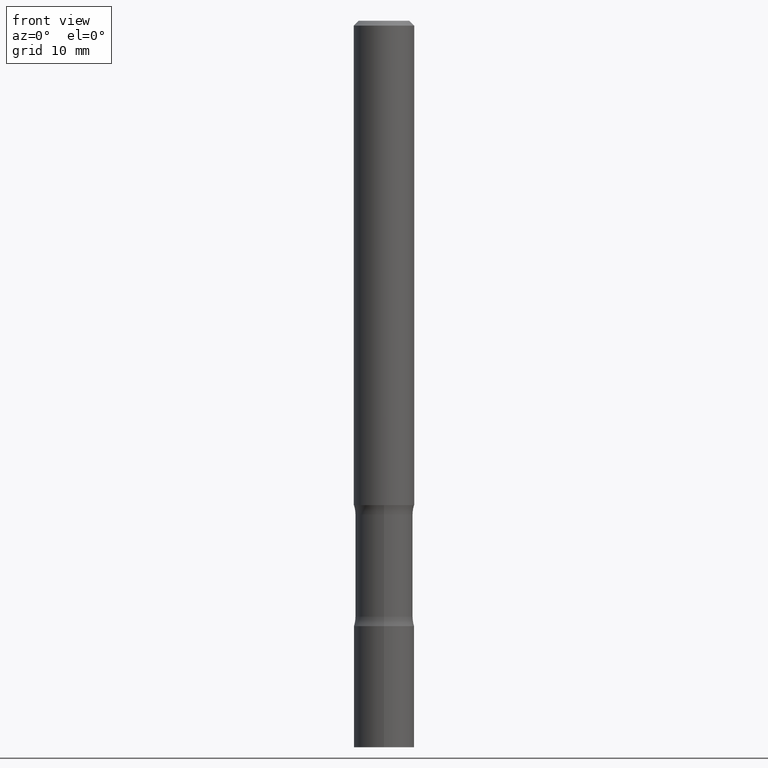
[diagram: clean part render]
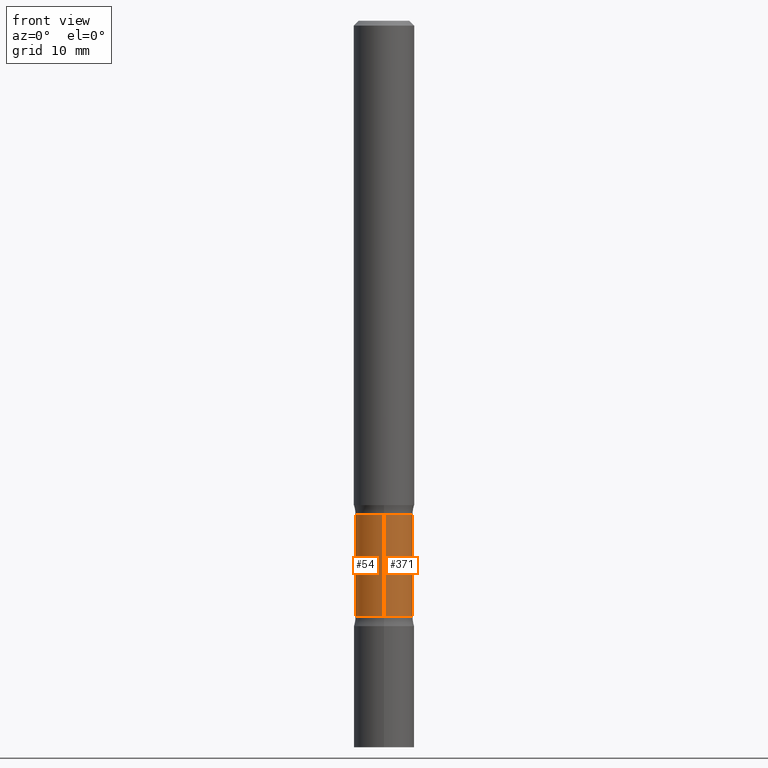
[diagram: same view with one multi-face feature highlighted, each face labeled with its STEP entity id]
A machine part, front view. The highlighted faces form ONE feature: a constant-radius fillet chain: 2 tangent blend faces with common blend radius 3.0163 mm. The faces share edges in the B-rep.
Their STEP definitions:
[1] entity #54 (Cylinder):
#3 = CARTESIAN_POINT ( 'NONE',  ( 4.944889637458821058E-29, -7.178666509795189020E-15, -2.039031237489990378 ) ) ;
#7 = VERTEX_POINT ( 'NONE', #336 ) ;
#12 = AXIS2_PLACEMENT_3D ( 'NONE', #259, #145, #461 ) ;
#13 = VECTOR ( 'NONE', #175, 39.37007874015748143 ) ;
#41 = EDGE_LOOP ( 'NONE', ( #482, #431, #72, #479 ) ) ;
#54 = ADVANCED_FACE ( 'NONE', ( #342 ), #304, .T. ) ;
#61 = CARTESIAN_POINT ( 'NONE',  ( 8.292268179753181276E-16, 0.1187499999999896139, -3.000000000000000444 ) ) ;
#72 = ORIENTED_EDGE ( 'NONE', *, *, #381, .T. ) ;
#75 = CIRCLE ( 'NONE', #192, 0.1187499999999999944 ) ;
#124 = VERTEX_POINT ( 'NONE', #345 ) ;
#142 = EDGE_CURVE ( 'NONE', #454, #124, #159, .T. ) ;
#144 = LINE ( 'NONE', #61, #490 ) ;
#145 = DIRECTION ( 'NONE',  ( 2.537572289003869812E-29, -3.359583909242031026E-15, -1.000000000000000000 ) ) ;
#159 = CIRCLE ( 'NONE', #12, 0.1187500000000000777 ) ;
#175 = DIRECTION ( 'NONE',  ( 2.537572289003869812E-29, -3.359583909242031420E-15, -1.000000000000000000 ) ) ;
#192 = AXIS2_PLACEMENT_3D ( 'NONE', #3, #324, #363 ) ;
#212 = DIRECTION ( 'NONE',  ( 2.537572289003869812E-29, -3.359583909242031420E-15, -1.000000000000000000 ) ) ;
#225 = DIRECTION ( 'NONE',  ( 6.982962677686265133E-15, 1.000000000000000000, -4.601007147224020477E-15 ) ) ;
#259 = CARTESIAN_POINT ( 'NONE',  ( 6.015586608640499097E-29, -8.596201029557853074E-15, -2.460968762510010066 ) ) ;
#286 = CARTESIAN_POINT ( 'NONE',  ( -8.361231934783450810E-16, -0.1187500000000086681, -2.460968762510009622 ) ) ;
#290 = EDGE_CURVE ( 'NONE', #7, #393, #75, .T. ) ;
#296 = CARTESIAN_POINT ( 'NONE',  ( 8.292268179752934757E-16, 0.1187499999999928196, -2.039031237489990822 ) ) ;
#304 = CYLINDRICAL_SURFACE ( 'NONE', #498, 0.1187500000000000361 ) ;
#306 = LINE ( 'NONE', #335, #13 ) ;
#324 = DIRECTION ( 'NONE',  ( 2.537572289003869812E-29, -3.359583909242031026E-15, -1.000000000000000000 ) ) ;
#335 = CARTESIAN_POINT ( 'NONE',  ( -8.146841372352955554E-16, -0.1187500000000104444, -2.999999999999999112 ) ) ;
#336 = CARTESIAN_POINT ( 'NONE',  ( -8.361231934783565195E-16, -0.1187500000000071693, -2.039031237489990378 ) ) ;
#342 = FACE_OUTER_BOUND ( 'NONE', #41, .T. ) ;
#345 = CARTESIAN_POINT ( 'NONE',  ( 8.292268179753048156E-16, 0.1187499999999914874, -2.460968762510010510 ) ) ;
#348 = CARTESIAN_POINT ( 'NONE',  ( 7.383417339802561736E-29, -1.040712170160804313E-14, -2.999999999999999556 ) ) ;
#363 = DIRECTION ( 'NONE',  ( 6.982962677686265133E-15, 1.000000000000000000, -2.300503573612011422E-15 ) ) ;
#381 = EDGE_CURVE ( 'NONE', #393, #124, #144, .T. ) ;
#392 = EDGE_CURVE ( 'NONE', #7, #454, #306, .T. ) ;
#393 = VERTEX_POINT ( 'NONE', #296 ) ;
#420 = DIRECTION ( 'NONE',  ( 2.537572289003869812E-29, -3.359583909242031026E-15, -1.000000000000000000 ) ) ;
#431 = ORIENTED_EDGE ( 'NONE', *, *, #290, .T. ) ;
#454 = VERTEX_POINT ( 'NONE', #286 ) ;
#461 = DIRECTION ( 'NONE',  ( 6.982962677686265922E-15, 1.000000000000000000, -4.601007147224018900E-15 ) ) ;
#479 = ORIENTED_EDGE ( 'NONE', *, *, #142, .F. ) ;
#482 = ORIENTED_EDGE ( 'NONE', *, *, #392, .F. ) ;
#490 = VECTOR ( 'NONE', #212, 39.37007874015748143 ) ;
#498 = AXIS2_PLACEMENT_3D ( 'NONE', #348, #420, #225 ) ;
[2] entity #371 (Cylinder):
#7 = VERTEX_POINT ( 'NONE', #336 ) ;
#13 = VECTOR ( 'NONE', #175, 39.37007874015748143 ) ;
#40 = CIRCLE ( 'NONE', #315, 0.1187499999999999944 ) ;
#50 = ORIENTED_EDGE ( 'NONE', *, *, #392, .T. ) ;
#61 = CARTESIAN_POINT ( 'NONE',  ( 8.292268179753181276E-16, 0.1187499999999896139, -3.000000000000000444 ) ) ;
#89 = CYLINDRICAL_SURFACE ( 'NONE', #264, 0.1187500000000000361 ) ;
#92 = CARTESIAN_POINT ( 'NONE',  ( 7.383417339802561736E-29, -1.040712170160804313E-14, -2.999999999999999556 ) ) ;
#111 = EDGE_CURVE ( 'NONE', #124, #454, #472, .T. ) ;
#116 = EDGE_LOOP ( 'NONE', ( #439, #50, #442, #448 ) ) ;
#124 = VERTEX_POINT ( 'NONE', #345 ) ;
#144 = LINE ( 'NONE', #61, #490 ) ;
#167 = DIRECTION ( 'NONE',  ( 2.537572289003869812E-29, -3.359583909242031026E-15, -1.000000000000000000 ) ) ;
#172 = DIRECTION ( 'NONE',  ( 2.537572289003869812E-29, -3.359583909242031026E-15, -1.000000000000000000 ) ) ;
#175 = DIRECTION ( 'NONE',  ( 2.537572289003869812E-29, -3.359583909242031420E-15, -1.000000000000000000 ) ) ;
#177 = AXIS2_PLACEMENT_3D ( 'NONE', #423, #494, #301 ) ;
#212 = DIRECTION ( 'NONE',  ( 2.537572289003869812E-29, -3.359583909242031420E-15, -1.000000000000000000 ) ) ;
#236 = FACE_OUTER_BOUND ( 'NONE', #116, .T. ) ;
#264 = AXIS2_PLACEMENT_3D ( 'NONE', #92, #172, #344 ) ;
#275 = CARTESIAN_POINT ( 'NONE',  ( 4.944889637458821058E-29, -7.178666509795189020E-15, -2.039031237489990378 ) ) ;
#286 = CARTESIAN_POINT ( 'NONE',  ( -8.361231934783450810E-16, -0.1187500000000086681, -2.460968762510009622 ) ) ;
#293 = DIRECTION ( 'NONE',  ( 6.982962677686265133E-15, 1.000000000000000000, -2.300503573612011422E-15 ) ) ;
#296 = CARTESIAN_POINT ( 'NONE',  ( 8.292268179752934757E-16, 0.1187499999999928196, -2.039031237489990822 ) ) ;
#301 = DIRECTION ( 'NONE',  ( 6.982962677686265922E-15, 1.000000000000000000, -4.601007147224018900E-15 ) ) ;
#306 = LINE ( 'NONE', #335, #13 ) ;
#315 = AXIS2_PLACEMENT_3D ( 'NONE', #275, #167, #293 ) ;
#335 = CARTESIAN_POINT ( 'NONE',  ( -8.146841372352955554E-16, -0.1187500000000104444, -2.999999999999999112 ) ) ;
#336 = CARTESIAN_POINT ( 'NONE',  ( -8.361231934783565195E-16, -0.1187500000000071693, -2.039031237489990378 ) ) ;
#344 = DIRECTION ( 'NONE',  ( 6.982962677686265133E-15, 1.000000000000000000, -4.601007147224020477E-15 ) ) ;
#345 = CARTESIAN_POINT ( 'NONE',  ( 8.292268179753048156E-16, 0.1187499999999914874, -2.460968762510010510 ) ) ;
#371 = ADVANCED_FACE ( 'NONE', ( #236 ), #89, .T. ) ;
#381 = EDGE_CURVE ( 'NONE', #393, #124, #144, .T. ) ;
#392 = EDGE_CURVE ( 'NONE', #7, #454, #306, .T. ) ;
#393 = VERTEX_POINT ( 'NONE', #296 ) ;
#423 = CARTESIAN_POINT ( 'NONE',  ( 6.015586608640499097E-29, -8.596201029557853074E-15, -2.460968762510010066 ) ) ;
#430 = EDGE_CURVE ( 'NONE', #393, #7, #40, .T. ) ;
#439 = ORIENTED_EDGE ( 'NONE', *, *, #430, .T. ) ;
#442 = ORIENTED_EDGE ( 'NONE', *, *, #111, .F. ) ;
#448 = ORIENTED_EDGE ( 'NONE', *, *, #381, .F. ) ;
#454 = VERTEX_POINT ( 'NONE', #286 ) ;
#472 = CIRCLE ( 'NONE', #177, 0.1187500000000000777 ) ;
#490 = VECTOR ( 'NONE', #212, 39.37007874015748143 ) ;
#494 = DIRECTION ( 'NONE',  ( 2.537572289003869812E-29, -3.359583909242031026E-15, -1.000000000000000000 ) ) ;